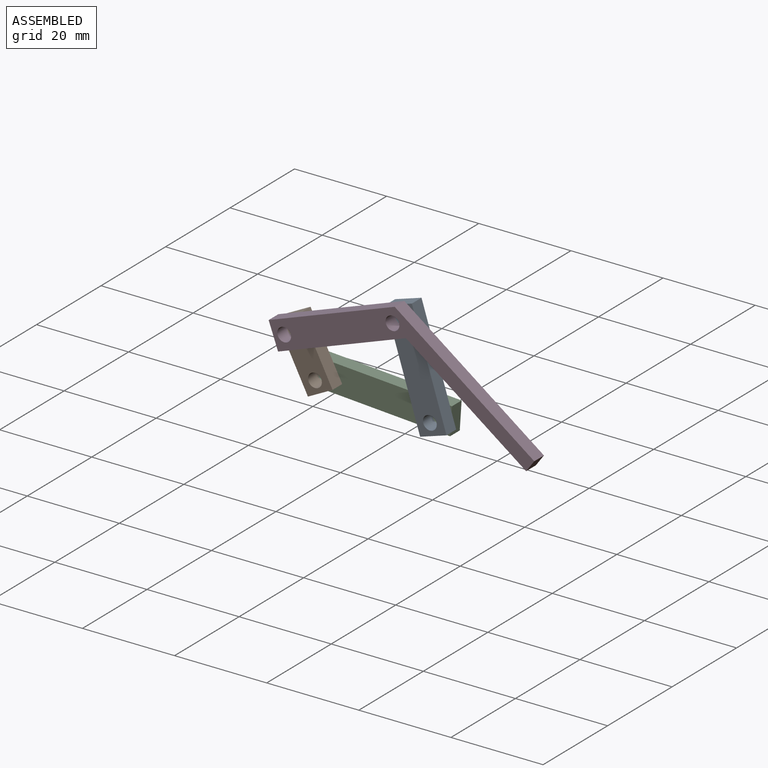
[diagram: assembled view]
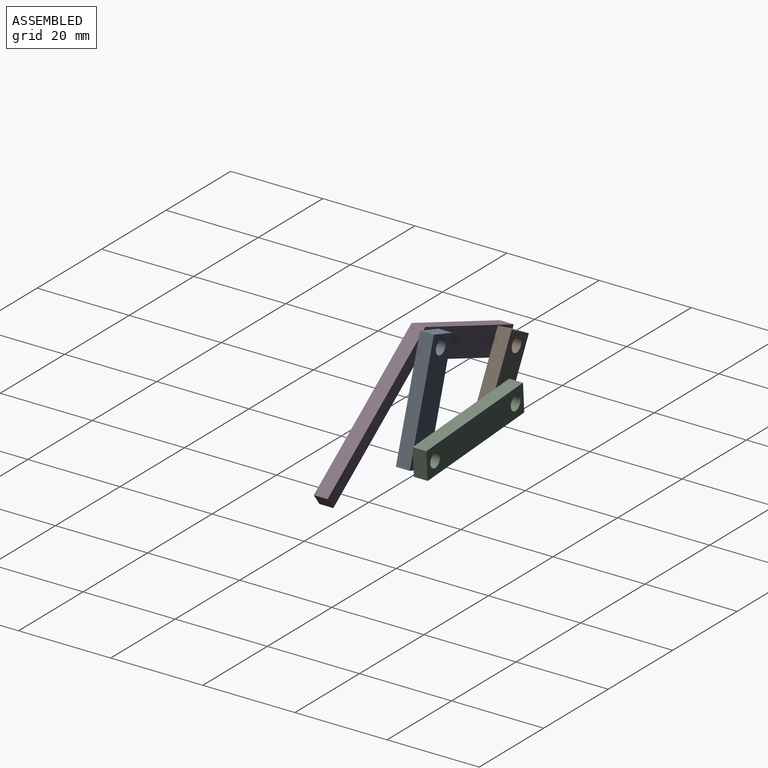
[diagram: assembled view, second angle]
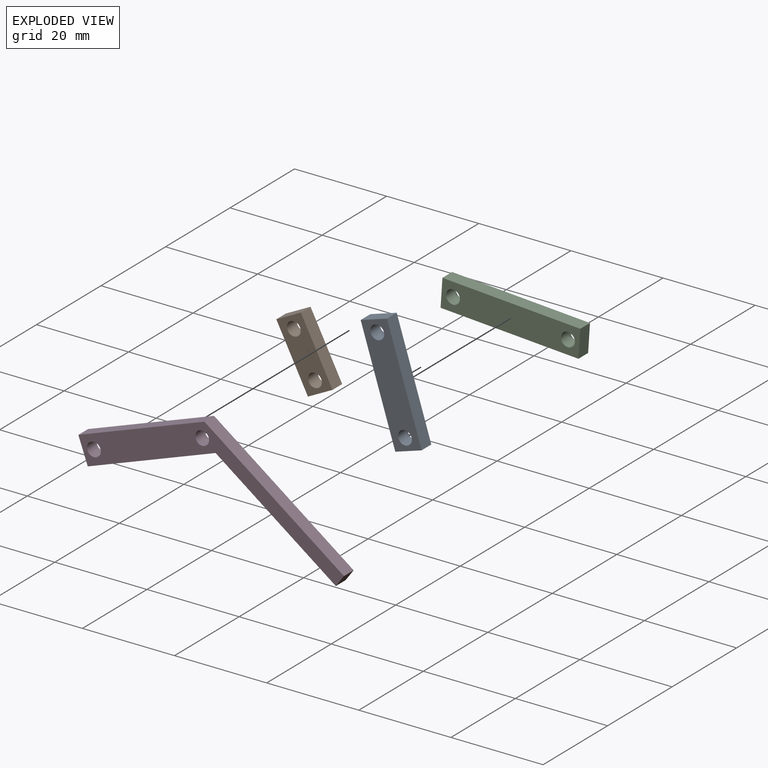
[diagram: exploded view]
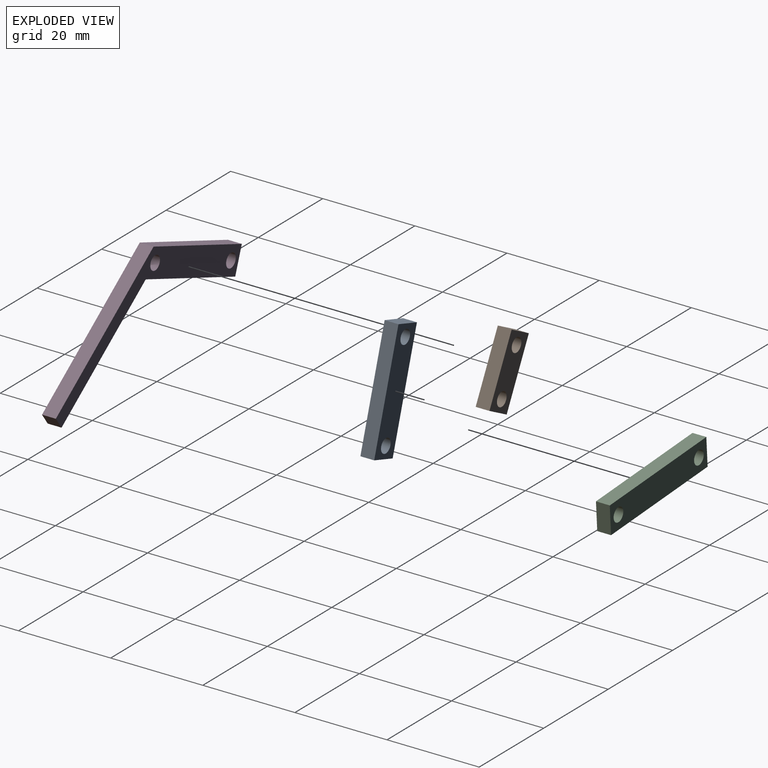
[diagram: exploded view, second angle]
ASSEMBLY  parts=4 mates=7
PART A: 8 faces, bbox 25x3x6 mm
  f0: plane 6x3mm, normal (-1,0,0), area 18mm2, adj f1,f4,f6,f7
  f1: plane 25x3mm, normal (0,0,-1), area 75mm2, adj f0,f2,f6,f7
  f2: plane 6x3mm, normal (1,0,0), area 18mm2, adj f1,f4,f6,f7
  f3: cylinder r=1.5mm len=3mm, axis (0,1,0), area 28.3mm2, adj f6,f7
  f4: plane 25x3mm, normal (0,0,1), area 75mm2, adj f0,f2,f6,f7
  f5: cylinder r=1.5mm len=3mm, axis (0,1,0), area 28.3mm2, adj f6,f7
  f6: plane 25x6mm, normal (0,-1,0), area 135.9mm2, adj f0,f1,f2,f3,f4,f5
  f7: plane 25x6mm, normal (0,1,0), area 135.9mm2, adj f0,f1,f2,f3,f4,f5
PART B: 8 faces, bbox 15x3x6 mm
  f0: plane 6x3mm, normal (-1,0,0), area 18mm2, adj f1,f4,f6,f7
  f1: plane 15x3mm, normal (0,0,-1), area 45mm2, adj f0,f2,f6,f7
  f2: plane 6x3mm, normal (1,0,0), area 18mm2, adj f1,f4,f6,f7
  f3: cylinder r=1.5mm len=3mm, axis (0,1,0), area 28.3mm2, adj f6,f7
  f4: plane 15x3mm, normal (0,0,1), area 45mm2, adj f0,f2,f6,f7
  f5: cylinder r=1.5mm len=3mm, axis (0,1,0), area 28.3mm2, adj f6,f7
  f6: plane 15x6mm, normal (0,-1,0), area 75.9mm2, adj f0,f1,f2,f3,f4,f5
  f7: plane 15x6mm, normal (0,1,0), area 75.9mm2, adj f0,f1,f2,f3,f4,f5
PART C: 8 faces, bbox 30x3x6 mm
  f0: plane 6x3mm, normal (-1,0,0), area 18mm2, adj f1,f4,f6,f7
  f1: plane 30x3mm, normal (0,0,-1), area 90mm2, adj f0,f2,f6,f7
  f2: plane 6x3mm, normal (1,0,0), area 18mm2, adj f1,f4,f6,f7
  f3: cylinder r=1.5mm len=3mm, axis (0,1,0), area 28.3mm2, adj f6,f7
  f4: plane 30x3mm, normal (0,0,1), area 90mm2, adj f0,f2,f6,f7
  f5: cylinder r=1.5mm len=3mm, axis (0,1,0), area 28.3mm2, adj f6,f7
  f6: plane 30x6mm, normal (0,-1,0), area 165.9mm2, adj f0,f1,f2,f3,f4,f5
  f7: plane 30x6mm, normal (0,1,0), area 165.9mm2, adj f0,f1,f2,f3,f4,f5
PART D: 10 faces, bbox 50x3x32.9 mm
  f0: plane 29.51x3mm, normal (0,0,-1), area 88.5mm2, adj f1,f6,f8,f9
  f1: plane 26.87x18.03mm, normal (-0.83,0,-0.56), area 97.1mm2, adj f0,f2,f8,f9
  f2: plane 3x2.49mm, normal (0.56,0,-0.83), area 9mm2, adj f1,f3,f8,f9
  f3: plane 31.2x20.93mm, normal (0.83,0,0.56), area 112.7mm2, adj f2,f4,f8,f9
  f4: plane 29.1x3mm, normal (0,0,1), area 87.3mm2, adj f3,f6,f8,f9
  f5: cylinder r=1.5mm len=3mm, axis (0,1,0), area 28.3mm2, adj f8,f9
  f6: plane 6x3mm, normal (-1,0,0), area 18mm2, adj f0,f4,f8,f9
  f7: cylinder r=1.5mm len=3mm, axis (0,1,0), area 28.3mm2, adj f8,f9
  f8: plane 50.03x32.87mm, normal (0,-1,0), area 266.6mm2, adj f0,f1,f2,f3,f4,f5,f6,f7
  f9: plane 50.03x32.87mm, normal (0,1,0), area 266.6mm2, adj f0,f1,f2,f3,f4,f5,f6,f7
PLACE A rot(axis=(0,1,0),72.5deg) t=(0.23,1.8,15.55)mm
PLACE B rot(axis=(0,-1,0),117.2deg) t=(-18.7,1.8,-1.86)mm
PLACE C rot(axis=(0,1,0),3.8deg) t=(16,4.8,-4.18)mm
PLACE D rot(axis=(0,-1,0),19.9deg) t=(-23.28,-1.2,7.03)mm
MATE cylindrical B.f3 <-> C.f3  axis (0,-1,0) through (-18.7,-1.2,-1.86)mm
MATE cylindrical D.f5 <-> B.f5  axis (0,1,0) through (-23.28,-1.2,7.03)mm
MATE planar C.f6 <-> B.f7  axis (0,-1,0) through (-6.23,1.8,-2.69)mm
MATE cylindrical D.f7 <-> A.f3  axis (0,1,0) through (0.23,-1.2,15.55)mm
MATE planar D.f9 <-> A.f6  axis (0,1,0) through (-0.9,-1.2,9.08)mm
MATE cylindrical C.f5 <-> A.f5  axis (0,-1,0) through (6.24,1.8,-3.53)mm
MATE planar C.f6 <-> A.f7  axis (0,-1,0) through (-6.23,1.8,-2.69)mm
